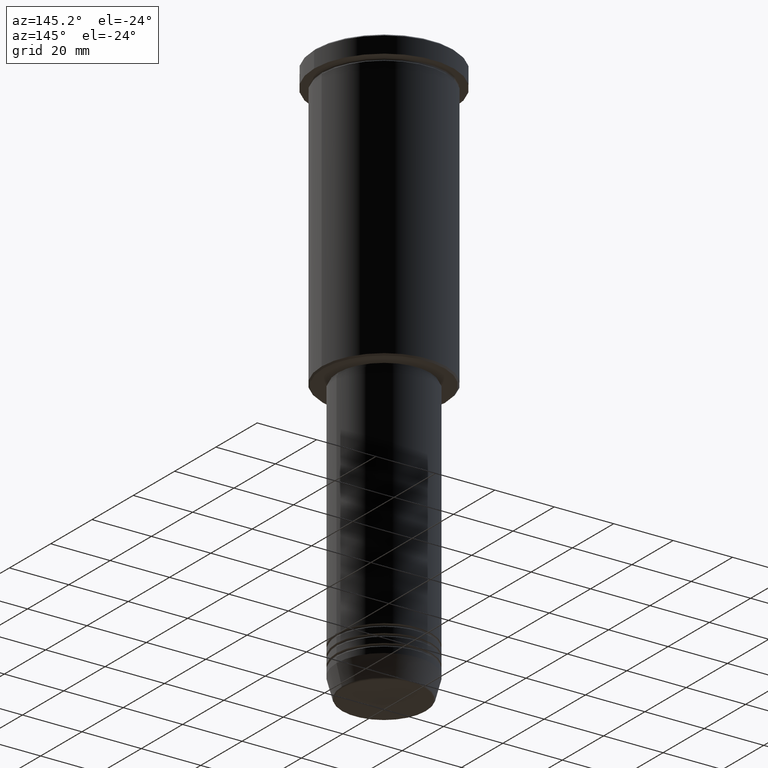
[diagram: clean part render]
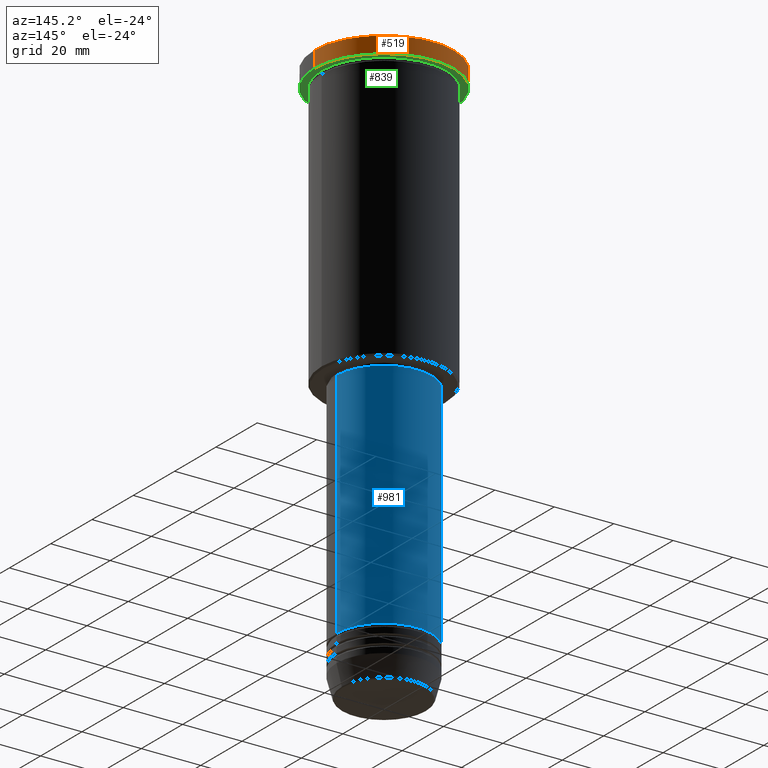
[diagram: same view with three faces highlighted in distinct colors, each labeled with its STEP entity id]
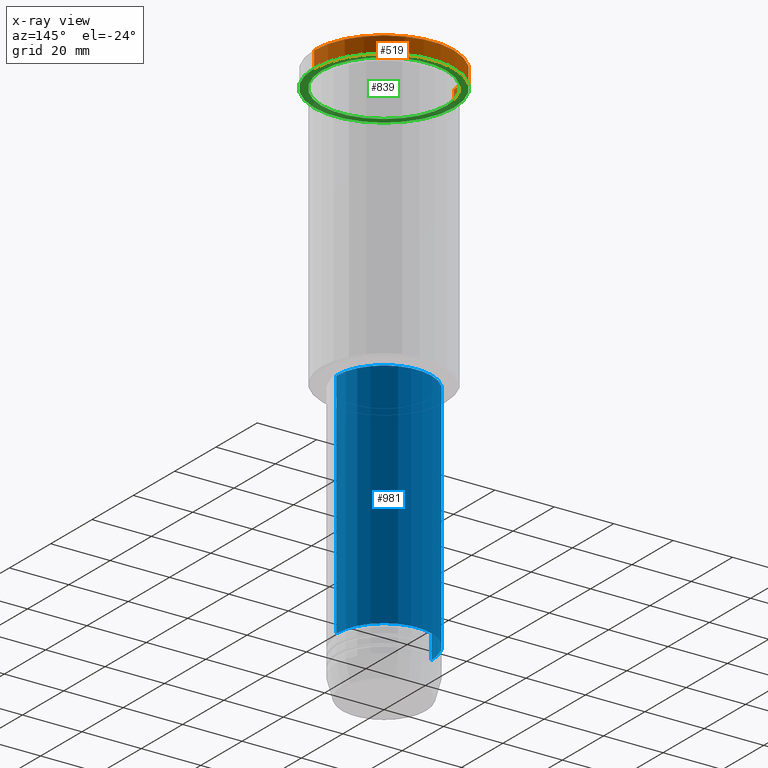
[diagram: x-ray of the same camera — body ghosted, the three highlighted faces saturated]
A machine part, auxiliary view with three faces highlighted in distinct colors.
The next image is the same camera in x-ray (body ghosted, the three faces saturated) — at least one of them is partly hidden behind the body in this view.
Their STEP definitions:

[orange] entity #519 — the highlighted cylindrical surface (partial cylindrical patch) has radius 23.5 mm, axis along (-0, -0, 1).
#1 = LINE ( 'NONE', #1015, #1159 ) ;
#30 = CYLINDRICAL_SURFACE ( 'NONE', #1176, 23.50000000000000000 ) ;
#70 = CARTESIAN_POINT ( 'NONE',  ( 0.000000000000000000, 0.000000000000000000, -5.999999999999994671 ) ) ;
#124 = CARTESIAN_POINT ( 'NONE',  ( 23.50000000000000000, 0.000000000000000000, -0.5000000000000281997 ) ) ;
#154 = ORIENTED_EDGE ( 'NONE', *, *, #881, .T. ) ;
#169 = DIRECTION ( 'NONE',  ( 1.000000000000000000, 0.000000000000000000, 0.000000000000000000 ) ) ;
#255 = CARTESIAN_POINT ( 'NONE',  ( -23.50000000000000000, 2.877919977996280320E-15, -0.5000000000000281997 ) ) ;
#279 = LINE ( 'NONE', #553, #380 ) ;
#343 = DIRECTION ( 'NONE',  ( 1.000000000000000000, 0.000000000000000000, 0.000000000000000000 ) ) ;
#380 = VECTOR ( 'NONE', #823, 1000.000000000000000 ) ;
#425 = EDGE_CURVE ( 'NONE', #901, #634, #279, .T. ) ;
#513 = CIRCLE ( 'NONE', #1097, 23.50000000000000000 ) ;
#519 = ADVANCED_FACE ( 'NONE', ( #567 ), #30, .T. ) ;
#537 = CARTESIAN_POINT ( 'NONE',  ( -23.50000000000000000, 2.877919977996280320E-15, -5.999999999999994671 ) ) ;
#553 = CARTESIAN_POINT ( 'NONE',  ( -23.50000000000000000, 2.877919977996280320E-15, 0.000000000000000000 ) ) ;
#562 = ORIENTED_EDGE ( 'NONE', *, *, #425, .T. ) ;
#567 = FACE_OUTER_BOUND ( 'NONE', #806, .T. ) ;
#634 = VERTEX_POINT ( 'NONE', #255 ) ;
#647 = DIRECTION ( 'NONE',  ( -0.000000000000000000, -0.000000000000000000, 1.000000000000000000 ) ) ;
#691 = CARTESIAN_POINT ( 'NONE',  ( 0.000000000000000000, 0.000000000000000000, -0.5000000000000281997 ) ) ;
#710 = VERTEX_POINT ( 'NONE', #880 ) ;
#713 = EDGE_CURVE ( 'NONE', #634, #851, #1058, .T. ) ;
#722 = DIRECTION ( 'NONE',  ( -0.000000000000000000, -0.000000000000000000, 1.000000000000000000 ) ) ;
#724 = ORIENTED_EDGE ( 'NONE', *, *, #1080, .F. ) ;
#753 = ORIENTED_EDGE ( 'NONE', *, *, #713, .T. ) ;
#806 = EDGE_LOOP ( 'NONE', ( #154, #562, #753, #724 ) ) ;
#823 = DIRECTION ( 'NONE',  ( -0.000000000000000000, -0.000000000000000000, 1.000000000000000000 ) ) ;
#851 = VERTEX_POINT ( 'NONE', #124 ) ;
#880 = CARTESIAN_POINT ( 'NONE',  ( 23.50000000000000000, 0.000000000000000000, -5.999999999999994671 ) ) ;
#881 = EDGE_CURVE ( 'NONE', #710, #901, #513, .T. ) ;
#891 = AXIS2_PLACEMENT_3D ( 'NONE', #691, #1152, #343 ) ;
#901 = VERTEX_POINT ( 'NONE', #537 ) ;
#926 = DIRECTION ( 'NONE',  ( 1.000000000000000000, 0.000000000000000000, 0.000000000000000000 ) ) ;
#1015 = CARTESIAN_POINT ( 'NONE',  ( 23.50000000000000000, 0.000000000000000000, 0.000000000000000000 ) ) ;
#1016 = DIRECTION ( 'NONE',  ( -0.000000000000000000, -0.000000000000000000, 1.000000000000000000 ) ) ;
#1058 = CIRCLE ( 'NONE', #891, 23.50000000000000000 ) ;
#1080 = EDGE_CURVE ( 'NONE', #710, #851, #1, .T. ) ;
#1097 = AXIS2_PLACEMENT_3D ( 'NONE', #70, #722, #169 ) ;
#1117 = CARTESIAN_POINT ( 'NONE',  ( 0.000000000000000000, 0.000000000000000000, 0.000000000000000000 ) ) ;
#1152 = DIRECTION ( 'NONE',  ( 0.000000000000000000, 0.000000000000000000, -1.000000000000000000 ) ) ;
#1159 = VECTOR ( 'NONE', #647, 1000.000000000000000 ) ;
#1176 = AXIS2_PLACEMENT_3D ( 'NONE', #1117, #1016, #926 ) ;

[blue] entity #981 — the highlighted cylindrical surface (partial cylindrical patch) has radius 16 mm, axis along (-0, -0, 1).
#35 = LINE ( 'NONE', #134, #551 ) ;
#61 = CARTESIAN_POINT ( 'NONE',  ( 0.000000000000000000, 0.000000000000000000, 0.000000000000000000 ) ) ;
#82 = DIRECTION ( 'NONE',  ( 1.000000000000000000, 0.000000000000000000, 0.000000000000000000 ) ) ;
#86 = FACE_OUTER_BOUND ( 'NONE', #97, .T. ) ;
#97 = EDGE_LOOP ( 'NONE', ( #186, #616, #884, #145 ) ) ;
#107 = CARTESIAN_POINT ( 'NONE',  ( -16.00000000000000000, 1.959434878635765131E-15, -97.00000000000002842 ) ) ;
#134 = CARTESIAN_POINT ( 'NONE',  ( -16.00000000000000000, 1.959434878635765131E-15, 0.000000000000000000 ) ) ;
#135 = CYLINDRICAL_SURFACE ( 'NONE', #892, 16.00000000000000000 ) ;
#142 = DIRECTION ( 'NONE',  ( -0.000000000000000000, -0.000000000000000000, 1.000000000000000000 ) ) ;
#145 = ORIENTED_EDGE ( 'NONE', *, *, #913, .F. ) ;
#149 = CIRCLE ( 'NONE', #735, 16.00000000000000000 ) ;
#159 = VERTEX_POINT ( 'NONE', #949 ) ;
#186 = ORIENTED_EDGE ( 'NONE', *, *, #653, .T. ) ;
#240 = CARTESIAN_POINT ( 'NONE',  ( 0.000000000000000000, 0.000000000000000000, -97.00000000000002842 ) ) ;
#323 = DIRECTION ( 'NONE',  ( -0.000000000000000000, -0.000000000000000000, 1.000000000000000000 ) ) ;
#448 = CARTESIAN_POINT ( 'NONE',  ( 16.00000000000000000, 0.000000000000000000, 0.000000000000000000 ) ) ;
#457 = AXIS2_PLACEMENT_3D ( 'NONE', #240, #861, #769 ) ;
#521 = CARTESIAN_POINT ( 'NONE',  ( 16.00000000000000000, 0.000000000000000000, -97.00000000000002842 ) ) ;
#539 = VERTEX_POINT ( 'NONE', #107 ) ;
#551 = VECTOR ( 'NONE', #323, 1000.000000000000000 ) ;
#616 = ORIENTED_EDGE ( 'NONE', *, *, #783, .T. ) ;
#638 = CARTESIAN_POINT ( 'NONE',  ( -16.00000000000000000, 1.959434878635765131E-15, -175.0000000000000000 ) ) ;
#653 = EDGE_CURVE ( 'NONE', #159, #1026, #149, .T. ) ;
#727 = DIRECTION ( 'NONE',  ( -0.000000000000000000, -0.000000000000000000, 1.000000000000000000 ) ) ;
#735 = AXIS2_PLACEMENT_3D ( 'NONE', #1088, #1084, #82 ) ;
#769 = DIRECTION ( 'NONE',  ( 1.000000000000000000, 0.000000000000000000, 0.000000000000000000 ) ) ;
#771 = DIRECTION ( 'NONE',  ( 1.000000000000000000, 0.000000000000000000, 0.000000000000000000 ) ) ;
#783 = EDGE_CURVE ( 'NONE', #1026, #539, #35, .T. ) ;
#861 = DIRECTION ( 'NONE',  ( -0.000000000000000000, -0.000000000000000000, 1.000000000000000000 ) ) ;
#872 = CIRCLE ( 'NONE', #457, 16.00000000000000000 ) ;
#884 = ORIENTED_EDGE ( 'NONE', *, *, #920, .F. ) ;
#892 = AXIS2_PLACEMENT_3D ( 'NONE', #61, #142, #771 ) ;
#899 = LINE ( 'NONE', #448, #1006 ) ;
#913 = EDGE_CURVE ( 'NONE', #159, #1038, #899, .T. ) ;
#920 = EDGE_CURVE ( 'NONE', #1038, #539, #872, .T. ) ;
#949 = CARTESIAN_POINT ( 'NONE',  ( 16.00000000000000000, 0.000000000000000000, -175.0000000000000000 ) ) ;
#981 = ADVANCED_FACE ( 'NONE', ( #86 ), #135, .T. ) ;
#1006 = VECTOR ( 'NONE', #727, 1000.000000000000000 ) ;
#1026 = VERTEX_POINT ( 'NONE', #638 ) ;
#1038 = VERTEX_POINT ( 'NONE', #521 ) ;
#1084 = DIRECTION ( 'NONE',  ( -0.000000000000000000, -0.000000000000000000, 1.000000000000000000 ) ) ;
#1088 = CARTESIAN_POINT ( 'NONE',  ( 0.000000000000000000, 0.000000000000000000, -175.0000000000000000 ) ) ;

[green] entity #839 — the highlighted planar face has unit normal (0, 0, -1).
#65 = EDGE_LOOP ( 'NONE', ( #439, #558 ) ) ;
#70 = CARTESIAN_POINT ( 'NONE',  ( 0.000000000000000000, 0.000000000000000000, -5.999999999999994671 ) ) ;
#71 = AXIS2_PLACEMENT_3D ( 'NONE', #530, #712, #705 ) ;
#72 = ORIENTED_EDGE ( 'NONE', *, *, #548, .T. ) ;
#101 = FACE_BOUND ( 'NONE', #585, .T. ) ;
#169 = DIRECTION ( 'NONE',  ( 1.000000000000000000, 0.000000000000000000, 0.000000000000000000 ) ) ;
#173 = VERTEX_POINT ( 'NONE', #571 ) ;
#180 = PLANE ( 'NONE',  #435 ) ;
#287 = EDGE_CURVE ( 'NONE', #173, #322, #394, .T. ) ;
#322 = VERTEX_POINT ( 'NONE', #516 ) ;
#335 = DIRECTION ( 'NONE',  ( -0.000000000000000000, -0.000000000000000000, 1.000000000000000000 ) ) ;
#356 = CARTESIAN_POINT ( 'NONE',  ( 0.000000000000000000, 0.000000000000000000, -5.999999999999994671 ) ) ;
#369 = DIRECTION ( 'NONE',  ( 0.000000000000000000, 0.000000000000000000, -1.000000000000000000 ) ) ;
#383 = CIRCLE ( 'NONE', #1115, 21.00000000000000000 ) ;
#394 = CIRCLE ( 'NONE', #414, 21.00000000000000000 ) ;
#414 = AXIS2_PLACEMENT_3D ( 'NONE', #356, #335, #960 ) ;
#435 = AXIS2_PLACEMENT_3D ( 'NONE', #998, #369, #1183 ) ;
#439 = ORIENTED_EDGE ( 'NONE', *, *, #881, .F. ) ;
#488 = CIRCLE ( 'NONE', #71, 23.50000000000000000 ) ;
#513 = CIRCLE ( 'NONE', #1097, 23.50000000000000000 ) ;
#516 = CARTESIAN_POINT ( 'NONE',  ( -21.00000000000000000, 0.000000000000000000, -5.999999999999994671 ) ) ;
#530 = CARTESIAN_POINT ( 'NONE',  ( 0.000000000000000000, 0.000000000000000000, -5.999999999999994671 ) ) ;
#537 = CARTESIAN_POINT ( 'NONE',  ( -23.50000000000000000, 2.877919977996280320E-15, -5.999999999999994671 ) ) ;
#548 = EDGE_CURVE ( 'NONE', #322, #173, #383, .T. ) ;
#558 = ORIENTED_EDGE ( 'NONE', *, *, #637, .F. ) ;
#561 = DIRECTION ( 'NONE',  ( -0.000000000000000000, -0.000000000000000000, 1.000000000000000000 ) ) ;
#571 = CARTESIAN_POINT ( 'NONE',  ( 21.00000000000000000, 2.571758278209441661E-15, -5.999999999999994671 ) ) ;
#585 = EDGE_LOOP ( 'NONE', ( #72, #1147 ) ) ;
#637 = EDGE_CURVE ( 'NONE', #901, #710, #488, .T. ) ;
#705 = DIRECTION ( 'NONE',  ( 1.000000000000000000, 0.000000000000000000, 0.000000000000000000 ) ) ;
#710 = VERTEX_POINT ( 'NONE', #880 ) ;
#712 = DIRECTION ( 'NONE',  ( -0.000000000000000000, -0.000000000000000000, 1.000000000000000000 ) ) ;
#722 = DIRECTION ( 'NONE',  ( -0.000000000000000000, -0.000000000000000000, 1.000000000000000000 ) ) ;
#831 = FACE_OUTER_BOUND ( 'NONE', #65, .T. ) ;
#839 = ADVANCED_FACE ( 'NONE', ( #101, #831 ), #180, .T. ) ;
#848 = DIRECTION ( 'NONE',  ( -1.000000000000000000, 0.000000000000000000, 0.000000000000000000 ) ) ;
#880 = CARTESIAN_POINT ( 'NONE',  ( 23.50000000000000000, 0.000000000000000000, -5.999999999999994671 ) ) ;
#881 = EDGE_CURVE ( 'NONE', #710, #901, #513, .T. ) ;
#901 = VERTEX_POINT ( 'NONE', #537 ) ;
#944 = CARTESIAN_POINT ( 'NONE',  ( 0.000000000000000000, 0.000000000000000000, -5.999999999999994671 ) ) ;
#960 = DIRECTION ( 'NONE',  ( -1.000000000000000000, 0.000000000000000000, 0.000000000000000000 ) ) ;
#998 = CARTESIAN_POINT ( 'NONE',  ( 0.000000000000000000, 23.50000000000000000, -5.999999999999994671 ) ) ;
#1097 = AXIS2_PLACEMENT_3D ( 'NONE', #70, #722, #169 ) ;
#1115 = AXIS2_PLACEMENT_3D ( 'NONE', #944, #561, #848 ) ;
#1147 = ORIENTED_EDGE ( 'NONE', *, *, #287, .T. ) ;
#1183 = DIRECTION ( 'NONE',  ( -1.000000000000000000, 0.000000000000000000, -0.000000000000000000 ) ) ;